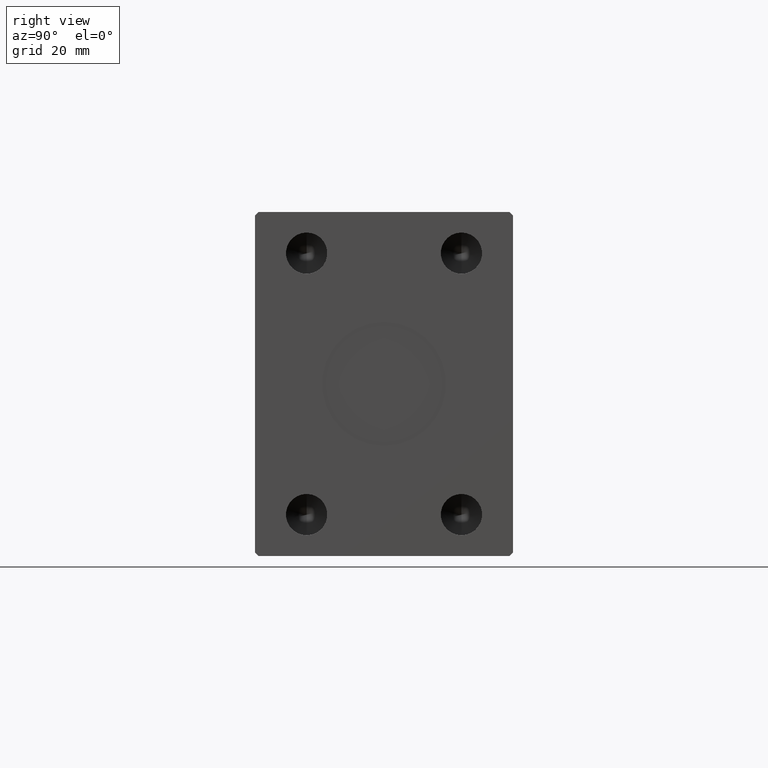
[diagram: clean part render]
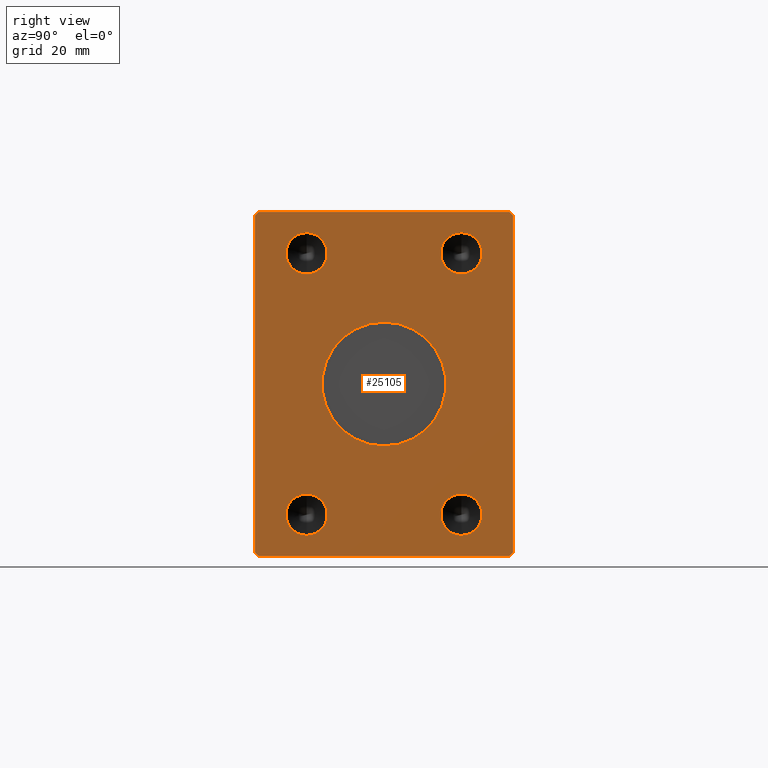
[diagram: same view with one face highlighted and labeled with its STEP entity id]
A machine part, right view. The second image highlights one B-rep face of the part: STEP entity #25105.
In plain terms, the highlighted planar face has unit normal (1, 0, 0).
Its self-contained STEP definition (entity closure, byte-faithful):
#85 = CARTESIAN_POINT ( 'NONE',  ( 162.0000000000000000, -22.50000000000000000, 44.00000000000000000 ) ) ;
#548 = CARTESIAN_POINT ( 'NONE',  ( 162.0000000000000000, -22.50000000000000000, -32.00000000000000711 ) ) ;
#564 = VECTOR ( 'NONE', #37542, 1000.000000000000000 ) ;
#957 = CIRCLE ( 'NONE', #38596, 5.999999999999998224 ) ;
#1359 = CARTESIAN_POINT ( 'NONE',  ( 162.0000000000000000, -22.50000000000000000, 38.00000000000000000 ) ) ;
#1552 = ORIENTED_EDGE ( 'NONE', *, *, #43271, .F. ) ;
#1677 = DIRECTION ( 'NONE',  ( 0.000000000000000000, 0.000000000000000000, -1.000000000000000000 ) ) ;
#1996 = ORIENTED_EDGE ( 'NONE', *, *, #9424, .T. ) ;
#2251 = ORIENTED_EDGE ( 'NONE', *, *, #43055, .T. ) ;
#2268 = DIRECTION ( 'NONE',  ( 0.000000000000000000, 0.7071067811865474617, 0.7071067811865474617 ) ) ;
#3077 = EDGE_CURVE ( 'NONE', #4503, #3412, #8321, .T. ) ;
#3187 = FACE_BOUND ( 'NONE', #18157, .T. ) ;
#3234 = ORIENTED_EDGE ( 'NONE', *, *, #27768, .F. ) ;
#3391 = CIRCLE ( 'NONE', #35329, 5.999999999999998224 ) ;
#3412 = VERTEX_POINT ( 'NONE', #40057 ) ;
#3434 = EDGE_CURVE ( 'NONE', #12411, #33355, #23138, .T. ) ;
#3798 = CARTESIAN_POINT ( 'NONE',  ( 162.0000000000000000, -37.50000000000001421, 48.99999999999998579 ) ) ;
#4503 = VERTEX_POINT ( 'NONE', #17791 ) ;
#4600 = AXIS2_PLACEMENT_3D ( 'NONE', #23640, #27196, #30758 ) ;
#5014 = CARTESIAN_POINT ( 'NONE',  ( 162.0000000000000000, 22.50000000000000000, -38.00000000000000000 ) ) ;
#5278 = DIRECTION ( 'NONE',  ( 0.000000000000000000, 0.000000000000000000, -1.000000000000000000 ) ) ;
#5643 = VERTEX_POINT ( 'NONE', #19561 ) ;
#6248 = DIRECTION ( 'NONE',  ( 0.000000000000000000, 1.000000000000000000, 0.000000000000000000 ) ) ;
#6699 = CARTESIAN_POINT ( 'NONE',  ( 162.0000000000000000, 36.50000000000000711, 50.00000000000000000 ) ) ;
#6837 = VECTOR ( 'NONE', #13587, 1000.000000000000000 ) ;
#6946 = CIRCLE ( 'NONE', #41018, 5.999999999999998224 ) ;
#7593 = CIRCLE ( 'NONE', #21084, 18.00000000000000000 ) ;
#8189 = EDGE_CURVE ( 'NONE', #34854, #5643, #23165, .T. ) ;
#8321 = CIRCLE ( 'NONE', #18976, 18.00000000000000000 ) ;
#8793 = EDGE_LOOP ( 'NONE', ( #43467, #26996 ) ) ;
#8980 = EDGE_LOOP ( 'NONE', ( #39925, #41202 ) ) ;
#9424 = EDGE_CURVE ( 'NONE', #21017, #36995, #33548, .T. ) ;
#10093 = FACE_OUTER_BOUND ( 'NONE', #35078, .T. ) ;
#10296 = DIRECTION ( 'NONE',  ( 1.000000000000000000, 0.000000000000000000, 0.000000000000000000 ) ) ;
#10693 = DIRECTION ( 'NONE',  ( 1.000000000000000000, -0.000000000000000000, -0.000000000000000000 ) ) ;
#10730 = CARTESIAN_POINT ( 'NONE',  ( 162.0000000000000000, 22.50000000000000000, 38.00000000000000000 ) ) ;
#11609 = CARTESIAN_POINT ( 'NONE',  ( 162.0000000000000000, -36.50000000000001421, 49.99999999999998579 ) ) ;
#11692 = DIRECTION ( 'NONE',  ( 1.000000000000000000, -0.000000000000000000, -0.000000000000000000 ) ) ;
#12034 = AXIS2_PLACEMENT_3D ( 'NONE', #10730, #24058, #23621 ) ;
#12122 = VERTEX_POINT ( 'NONE', #85 ) ;
#12337 = VECTOR ( 'NONE', #32860, 1000.000000000000114 ) ;
#12411 = VERTEX_POINT ( 'NONE', #31425 ) ;
#12729 = CIRCLE ( 'NONE', #12034, 5.999999999999998224 ) ;
#13171 = DIRECTION ( 'NONE',  ( 0.000000000000000000, -0.7071067811865474617, 0.7071067811865474617 ) ) ;
#13418 = PLANE ( 'NONE',  #4600 ) ;
#13587 = DIRECTION ( 'NONE',  ( 0.000000000000000000, -1.000000000000000000, -1.901066822988281457E-16 ) ) ;
#14147 = EDGE_CURVE ( 'NONE', #41875, #21011, #12729, .T. ) ;
#15223 = VERTEX_POINT ( 'NONE', #25146 ) ;
#15956 = CARTESIAN_POINT ( 'NONE',  ( 162.0000000000000000, -36.50000000000001421, 49.99999999999998579 ) ) ;
#17126 = DIRECTION ( 'NONE',  ( 0.000000000000000000, 0.000000000000000000, -1.000000000000000000 ) ) ;
#17159 = CIRCLE ( 'NONE', #42735, 5.999999999999998224 ) ;
#17181 = ORIENTED_EDGE ( 'NONE', *, *, #3434, .T. ) ;
#17791 = CARTESIAN_POINT ( 'NONE',  ( 162.0000000000000000, 0.000000000000000000, -18.00000000000000000 ) ) ;
#18117 = ORIENTED_EDGE ( 'NONE', *, *, #8189, .T. ) ;
#18157 = EDGE_LOOP ( 'NONE', ( #3234, #22178 ) ) ;
#18576 = CARTESIAN_POINT ( 'NONE',  ( 162.0000000000000000, -22.50000000000000000, 38.00000000000000000 ) ) ;
#18779 = CARTESIAN_POINT ( 'NONE',  ( 162.0000000000000000, -22.50000000000000000, -38.00000000000000711 ) ) ;
#18841 = CARTESIAN_POINT ( 'NONE',  ( 162.0000000000000000, -22.50000000000000000, -44.00000000000000711 ) ) ;
#18976 = AXIS2_PLACEMENT_3D ( 'NONE', #33866, #10296, #34953 ) ;
#19561 = CARTESIAN_POINT ( 'NONE',  ( 162.0000000000000000, -37.50000000000001421, -49.00000000000000000 ) ) ;
#19623 = LINE ( 'NONE', #40746, #41592 ) ;
#20365 = ORIENTED_EDGE ( 'NONE', *, *, #37092, .T. ) ;
#20552 = EDGE_CURVE ( 'NONE', #23321, #12122, #17159, .T. ) ;
#20684 = CARTESIAN_POINT ( 'NONE',  ( 162.0000000000000000, -22.50000000000000000, -38.00000000000000711 ) ) ;
#21011 = VERTEX_POINT ( 'NONE', #28604 ) ;
#21017 = VERTEX_POINT ( 'NONE', #32158 ) ;
#21084 = AXIS2_PLACEMENT_3D ( 'NONE', #29974, #26849, #40426 ) ;
#22178 = ORIENTED_EDGE ( 'NONE', *, *, #14147, .F. ) ;
#23066 = LINE ( 'NONE', #35981, #36766 ) ;
#23071 = LINE ( 'NONE', #15956, #12337 ) ;
#23138 = LINE ( 'NONE', #36715, #28221 ) ;
#23165 = LINE ( 'NONE', #3798, #43879 ) ;
#23321 = VERTEX_POINT ( 'NONE', #26576 ) ;
#23595 = LINE ( 'NONE', #6699, #6837 ) ;
#23621 = DIRECTION ( 'NONE',  ( 0.000000000000000000, 0.000000000000000000, -1.000000000000000000 ) ) ;
#23640 = CARTESIAN_POINT ( 'NONE',  ( 162.0000000000000000, 0.000000000000000000, 0.000000000000000000 ) ) ;
#23666 = VECTOR ( 'NONE', #2268, 1000.000000000000114 ) ;
#23802 = DIRECTION ( 'NONE',  ( 0.000000000000000000, 0.000000000000000000, -1.000000000000000000 ) ) ;
#24058 = DIRECTION ( 'NONE',  ( 1.000000000000000000, -0.000000000000000000, -0.000000000000000000 ) ) ;
#24420 = ORIENTED_EDGE ( 'NONE', *, *, #37627, .F. ) ;
#24517 = EDGE_LOOP ( 'NONE', ( #32425, #24420 ) ) ;
#25016 = DIRECTION ( 'NONE',  ( 1.000000000000000000, -0.000000000000000000, -0.000000000000000000 ) ) ;
#25105 = ADVANCED_FACE ( 'NONE', ( #33654, #3187, #30330, #27412, #43895, #10093 ), #13418, .T. ) ;
#25146 = CARTESIAN_POINT ( 'NONE',  ( 162.0000000000000000, 22.50000000000000000, -32.00000000000000000 ) ) ;
#25251 = CIRCLE ( 'NONE', #30928, 5.999999999999998224 ) ;
#25369 = EDGE_CURVE ( 'NONE', #40105, #35384, #31605, .T. ) ;
#25588 = DIRECTION ( 'NONE',  ( 0.000000000000000000, 0.000000000000000000, -1.000000000000000000 ) ) ;
#25741 = DIRECTION ( 'NONE',  ( 1.000000000000000000, -0.000000000000000000, -0.000000000000000000 ) ) ;
#25844 = ORIENTED_EDGE ( 'NONE', *, *, #27290, .T. ) ;
#26177 = CARTESIAN_POINT ( 'NONE',  ( 162.0000000000000000, 22.50000000000000000, 44.00000000000000000 ) ) ;
#26576 = CARTESIAN_POINT ( 'NONE',  ( 162.0000000000000000, -22.50000000000000000, 32.00000000000000000 ) ) ;
#26713 = CARTESIAN_POINT ( 'NONE',  ( 162.0000000000000000, -37.50000000000001421, 48.99999999999998579 ) ) ;
#26849 = DIRECTION ( 'NONE',  ( 1.000000000000000000, 0.000000000000000000, 0.000000000000000000 ) ) ;
#26943 = DIRECTION ( 'NONE',  ( 0.000000000000000000, 0.000000000000000000, -1.000000000000000000 ) ) ;
#26996 = ORIENTED_EDGE ( 'NONE', *, *, #43307, .F. ) ;
#27196 = DIRECTION ( 'NONE',  ( 1.000000000000000000, 0.000000000000000000, 0.000000000000000000 ) ) ;
#27290 = EDGE_CURVE ( 'NONE', #40406, #34854, #23071, .T. ) ;
#27412 = FACE_BOUND ( 'NONE', #41938, .T. ) ;
#27440 = AXIS2_PLACEMENT_3D ( 'NONE', #32858, #25741, #5278 ) ;
#27768 = EDGE_CURVE ( 'NONE', #21011, #41875, #957, .T. ) ;
#28221 = VECTOR ( 'NONE', #6248, 1000.000000000000000 ) ;
#28604 = CARTESIAN_POINT ( 'NONE',  ( 162.0000000000000000, 22.50000000000000000, 32.00000000000000000 ) ) ;
#29974 = CARTESIAN_POINT ( 'NONE',  ( 162.0000000000000000, 0.000000000000000000, 0.000000000000000000 ) ) ;
#30330 = FACE_BOUND ( 'NONE', #8980, .T. ) ;
#30758 = DIRECTION ( 'NONE',  ( 0.000000000000000000, 0.000000000000000000, -1.000000000000000000 ) ) ;
#30903 = ORIENTED_EDGE ( 'NONE', *, *, #34857, .T. ) ;
#30928 = AXIS2_PLACEMENT_3D ( 'NONE', #18779, #25016, #31693 ) ;
#31355 = CARTESIAN_POINT ( 'NONE',  ( 162.0000000000000000, 22.50000000000000000, 38.00000000000000000 ) ) ;
#31425 = CARTESIAN_POINT ( 'NONE',  ( 162.0000000000000000, -36.50000000000000711, -50.00000000000000000 ) ) ;
#31605 = CIRCLE ( 'NONE', #42286, 5.999999999999998224 ) ;
#31693 = DIRECTION ( 'NONE',  ( 0.000000000000000000, 0.000000000000000000, -1.000000000000000000 ) ) ;
#32158 = CARTESIAN_POINT ( 'NONE',  ( 162.0000000000000000, 37.50000000000000711, -49.00000000000000000 ) ) ;
#32425 = ORIENTED_EDGE ( 'NONE', *, *, #3077, .F. ) ;
#32858 = CARTESIAN_POINT ( 'NONE',  ( 162.0000000000000000, 22.50000000000000000, -38.00000000000000000 ) ) ;
#32860 = DIRECTION ( 'NONE',  ( 0.000000000000000000, -0.7071067811865474617, -0.7071067811865474617 ) ) ;
#33355 = VERTEX_POINT ( 'NONE', #40502 ) ;
#33548 = LINE ( 'NONE', #40662, #564 ) ;
#33654 = FACE_BOUND ( 'NONE', #24517, .T. ) ;
#33813 = DIRECTION ( 'NONE',  ( 1.000000000000000000, -0.000000000000000000, -0.000000000000000000 ) ) ;
#33866 = CARTESIAN_POINT ( 'NONE',  ( 162.0000000000000000, 0.000000000000000000, 0.000000000000000000 ) ) ;
#34029 = EDGE_CURVE ( 'NONE', #35384, #40105, #25251, .T. ) ;
#34854 = VERTEX_POINT ( 'NONE', #26713 ) ;
#34857 = EDGE_CURVE ( 'NONE', #38306, #40406, #23595, .T. ) ;
#34953 = DIRECTION ( 'NONE',  ( 0.000000000000000000, 0.000000000000000000, -1.000000000000000000 ) ) ;
#35046 = DIRECTION ( 'NONE',  ( 0.000000000000000000, 0.000000000000000000, -1.000000000000000000 ) ) ;
#35078 = EDGE_LOOP ( 'NONE', ( #20365, #30903, #25844, #18117, #2251, #17181, #39027, #1996 ) ) ;
#35329 = AXIS2_PLACEMENT_3D ( 'NONE', #5014, #42160, #1677 ) ;
#35341 = EDGE_CURVE ( 'NONE', #15223, #43851, #40219, .T. ) ;
#35384 = VERTEX_POINT ( 'NONE', #18841 ) ;
#35827 = DIRECTION ( 'NONE',  ( 1.000000000000000000, -0.000000000000000000, -0.000000000000000000 ) ) ;
#35858 = LINE ( 'NONE', #42090, #23666 ) ;
#35981 = CARTESIAN_POINT ( 'NONE',  ( 162.0000000000000000, -37.50000000000001421, -49.00000000000000000 ) ) ;
#36715 = CARTESIAN_POINT ( 'NONE',  ( 162.0000000000000000, -36.50000000000000711, -50.00000000000000000 ) ) ;
#36766 = VECTOR ( 'NONE', #39764, 1000.000000000000114 ) ;
#36995 = VERTEX_POINT ( 'NONE', #42558 ) ;
#37091 = CARTESIAN_POINT ( 'NONE',  ( 162.0000000000000000, 36.50000000000000711, 50.00000000000000000 ) ) ;
#37092 = EDGE_CURVE ( 'NONE', #36995, #38306, #19623, .T. ) ;
#37542 = DIRECTION ( 'NONE',  ( 0.000000000000000000, 0.000000000000000000, 1.000000000000000000 ) ) ;
#37627 = EDGE_CURVE ( 'NONE', #3412, #4503, #7593, .T. ) ;
#38306 = VERTEX_POINT ( 'NONE', #37091 ) ;
#38596 = AXIS2_PLACEMENT_3D ( 'NONE', #31355, #10693, #23802 ) ;
#39027 = ORIENTED_EDGE ( 'NONE', *, *, #42213, .T. ) ;
#39764 = DIRECTION ( 'NONE',  ( 0.000000000000000000, 0.7071067811865500152, -0.7071067811865451302 ) ) ;
#39925 = ORIENTED_EDGE ( 'NONE', *, *, #34029, .F. ) ;
#40057 = CARTESIAN_POINT ( 'NONE',  ( 162.0000000000000000, 2.204364238465235428E-15, 18.00000000000000000 ) ) ;
#40105 = VERTEX_POINT ( 'NONE', #548 ) ;
#40219 = CIRCLE ( 'NONE', #27440, 5.999999999999998224 ) ;
#40406 = VERTEX_POINT ( 'NONE', #11609 ) ;
#40426 = DIRECTION ( 'NONE',  ( 0.000000000000000000, 0.000000000000000000, -1.000000000000000000 ) ) ;
#40428 = CARTESIAN_POINT ( 'NONE',  ( 162.0000000000000000, 22.50000000000000000, -44.00000000000000000 ) ) ;
#40502 = CARTESIAN_POINT ( 'NONE',  ( 162.0000000000000000, 36.50000000000000711, -50.00000000000000000 ) ) ;
#40577 = ORIENTED_EDGE ( 'NONE', *, *, #35341, .F. ) ;
#40662 = CARTESIAN_POINT ( 'NONE',  ( 162.0000000000000000, 37.50000000000000711, -49.00000000000000000 ) ) ;
#40746 = CARTESIAN_POINT ( 'NONE',  ( 162.0000000000000000, 37.50000000000000711, 49.00000000000000000 ) ) ;
#41018 = AXIS2_PLACEMENT_3D ( 'NONE', #18576, #11692, #35046 ) ;
#41202 = ORIENTED_EDGE ( 'NONE', *, *, #25369, .F. ) ;
#41592 = VECTOR ( 'NONE', #13171, 1000.000000000000114 ) ;
#41875 = VERTEX_POINT ( 'NONE', #26177 ) ;
#41938 = EDGE_LOOP ( 'NONE', ( #1552, #40577 ) ) ;
#42090 = CARTESIAN_POINT ( 'NONE',  ( 162.0000000000000000, 36.50000000000000711, -50.00000000000000000 ) ) ;
#42160 = DIRECTION ( 'NONE',  ( 1.000000000000000000, -0.000000000000000000, -0.000000000000000000 ) ) ;
#42213 = EDGE_CURVE ( 'NONE', #33355, #21017, #35858, .T. ) ;
#42286 = AXIS2_PLACEMENT_3D ( 'NONE', #20684, #33813, #17126 ) ;
#42558 = CARTESIAN_POINT ( 'NONE',  ( 162.0000000000000000, 37.50000000000000711, 49.00000000000000000 ) ) ;
#42735 = AXIS2_PLACEMENT_3D ( 'NONE', #1359, #35827, #25588 ) ;
#43055 = EDGE_CURVE ( 'NONE', #5643, #12411, #23066, .T. ) ;
#43271 = EDGE_CURVE ( 'NONE', #43851, #15223, #3391, .T. ) ;
#43307 = EDGE_CURVE ( 'NONE', #12122, #23321, #6946, .T. ) ;
#43467 = ORIENTED_EDGE ( 'NONE', *, *, #20552, .F. ) ;
#43851 = VERTEX_POINT ( 'NONE', #40428 ) ;
#43879 = VECTOR ( 'NONE', #26943, 1000.000000000000000 ) ;
#43895 = FACE_BOUND ( 'NONE', #8793, .T. ) ;